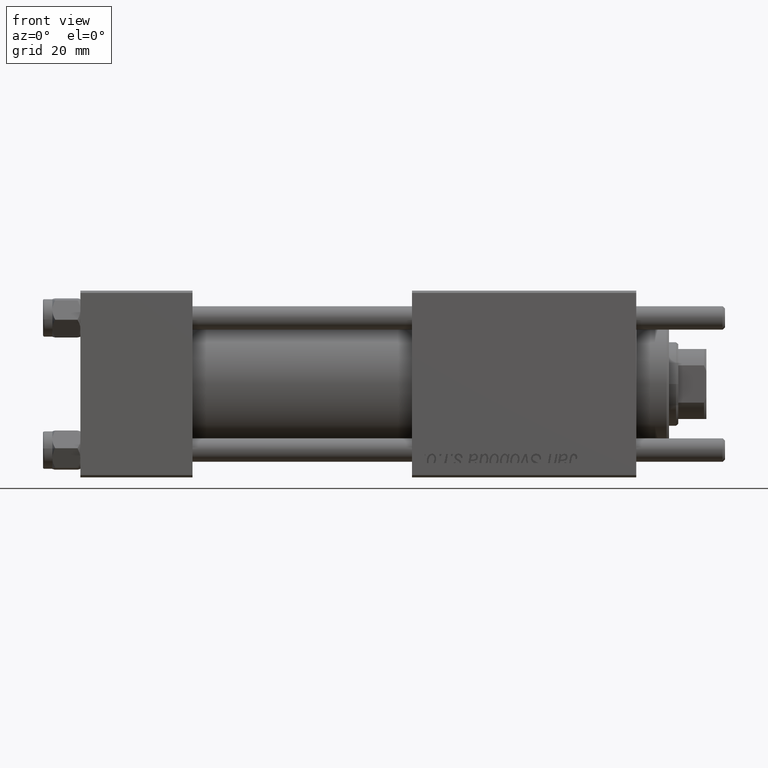
[diagram: clean part render]
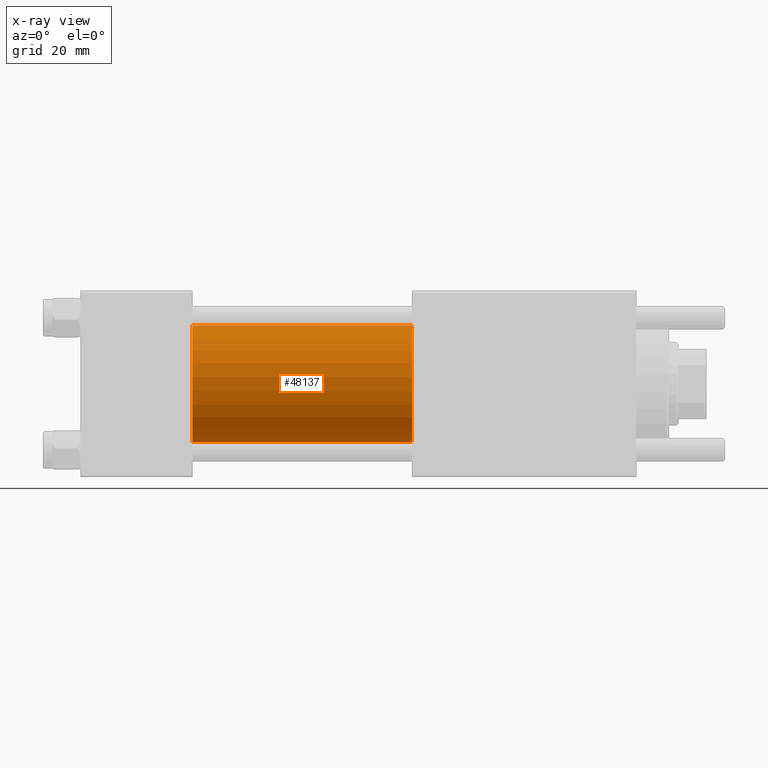
[diagram: x-ray — body ghosted, one internal face saturated and labeled with its STEP entity id]
A machine part, front view, then the same camera in x-ray: the body is ghosted and one INTERNAL B-rep face — a face not visible from any outside direction — is saturated and labeled: STEP entity #48137.
In plain terms, the highlighted cylindrical surface (partial cylindrical patch) has radius 12.5 mm, axis along (-1, -0, -0).
Its self-contained STEP definition (entity closure, byte-faithful):
#2079 = CIRCLE ( 'NONE', #5787, 12.49999999999999645 ) ;
#4061 = VERTEX_POINT ( 'NONE', #45541 ) ;
#4483 = VECTOR ( 'NONE', #40703, 1000.000000000000000 ) ;
#5787 = AXIS2_PLACEMENT_3D ( 'NONE', #33606, #16423, #11834 ) ;
#8751 = ORIENTED_EDGE ( 'NONE', *, *, #9355, .T. ) ;
#8846 = DIRECTION ( 'NONE',  ( 0.000000000000000000, 0.000000000000000000, -1.000000000000000000 ) ) ;
#9130 = CARTESIAN_POINT ( 'NONE',  ( 71.00000000000001421, -2.602085213965210642E-15, 0.000000000000000000 ) ) ;
#9355 = EDGE_CURVE ( 'NONE', #47474, #14268, #14339, .T. ) ;
#10166 = CARTESIAN_POINT ( 'NONE',  ( 24.00000000000000000, -1.071276715031019515E-15, -12.49999999999999645 ) ) ;
#11834 = DIRECTION ( 'NONE',  ( 0.000000000000000000, 0.000000000000000000, -1.000000000000000000 ) ) ;
#12382 = CARTESIAN_POINT ( 'NONE',  ( 71.00000000000001421, -1.071276715031019515E-15, -12.49999999999999645 ) ) ;
#13823 = AXIS2_PLACEMENT_3D ( 'NONE', #52047, #30584, #48049 ) ;
#14268 = VERTEX_POINT ( 'NONE', #10166 ) ;
#14339 = LINE ( 'NONE', #49286, #4483 ) ;
#14637 = CIRCLE ( 'NONE', #33852, 12.49999999999999645 ) ;
#16423 = DIRECTION ( 'NONE',  ( 1.000000000000000000, 0.000000000000000000, 0.000000000000000000 ) ) ;
#19319 = DIRECTION ( 'NONE',  ( -1.000000000000000000, -0.000000000000000000, -0.000000000000000000 ) ) ;
#22498 = ORIENTED_EDGE ( 'NONE', *, *, #35591, .F. ) ;
#23013 = VERTEX_POINT ( 'NONE', #49845 ) ;
#24411 = ORIENTED_EDGE ( 'NONE', *, *, #39875, .T. ) ;
#25438 = LINE ( 'NONE', #42912, #53848 ) ;
#30584 = DIRECTION ( 'NONE',  ( -1.000000000000000000, -0.000000000000000000, -0.000000000000000000 ) ) ;
#33606 = CARTESIAN_POINT ( 'NONE',  ( 24.00000000000000000, -2.602085213965210642E-15, 0.000000000000000000 ) ) ;
#33852 = AXIS2_PLACEMENT_3D ( 'NONE', #9130, #35790, #8846 ) ;
#35591 = EDGE_CURVE ( 'NONE', #23013, #4061, #25438, .T. ) ;
#35790 = DIRECTION ( 'NONE',  ( 1.000000000000000000, 0.000000000000000000, 0.000000000000000000 ) ) ;
#38607 = CYLINDRICAL_SURFACE ( 'NONE', #13823, 12.49999999999999645 ) ;
#38899 = FACE_OUTER_BOUND ( 'NONE', #43837, .T. ) ;
#39875 = EDGE_CURVE ( 'NONE', #23013, #47474, #14637, .T. ) ;
#40703 = DIRECTION ( 'NONE',  ( -1.000000000000000000, -0.000000000000000000, -0.000000000000000000 ) ) ;
#42912 = CARTESIAN_POINT ( 'NONE',  ( 71.00000000000001421, -2.602085213965210642E-15, 12.49999999999999645 ) ) ;
#43837 = EDGE_LOOP ( 'NONE', ( #24411, #8751, #56218, #22498 ) ) ;
#45541 = CARTESIAN_POINT ( 'NONE',  ( 24.00000000000000000, -2.602085213965210642E-15, 12.49999999999999645 ) ) ;
#47474 = VERTEX_POINT ( 'NONE', #12382 ) ;
#48049 = DIRECTION ( 'NONE',  ( 0.000000000000000000, 0.000000000000000000, 1.000000000000000000 ) ) ;
#48137 = ADVANCED_FACE ( 'NONE', ( #38899 ), #38607, .F. ) ;
#49286 = CARTESIAN_POINT ( 'NONE',  ( 71.00000000000001421, -1.071276715031019515E-15, -12.49999999999999645 ) ) ;
#49845 = CARTESIAN_POINT ( 'NONE',  ( 71.00000000000001421, -2.602085213965210642E-15, 12.49999999999999645 ) ) ;
#52047 = CARTESIAN_POINT ( 'NONE',  ( 71.00000000000001421, -2.602085213965210642E-15, 0.000000000000000000 ) ) ;
#53848 = VECTOR ( 'NONE', #19319, 1000.000000000000000 ) ;
#55618 = EDGE_CURVE ( 'NONE', #4061, #14268, #2079, .T. ) ;
#56218 = ORIENTED_EDGE ( 'NONE', *, *, #55618, .F. ) ;